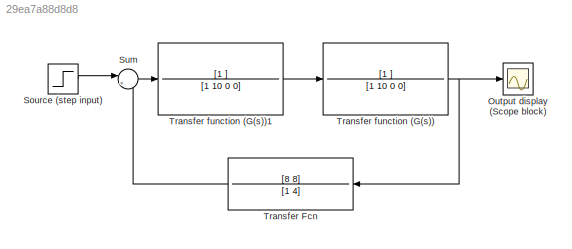
MODEL slx_29ea7a88d8d8
KIND model
CONFIG AbsTol = auto
CONFIG EnableMultiTasking = off
CONFIG FixedStep = auto
CONFIG MaxStep = auto
CONFIG MinStep = auto
CONFIG RelTol = 1e-3
CONFIG SampleTimeConstraint = Unconstrained
CONFIG SolverName = VariableStepAuto
CONFIG StartTime = 0.0
CONFIG StopTime = 20
BLOCK [Scope] Output display (Scope block)
  Floating = off
  NumInputPorts = 1
  Ports = [1]
  ScopeSpecificationString = Simulink.scopes.TimeScopeBlockCfg('CurrentConfiguration', extmgr.ConfigurationSet(extmgr.Configuration('Core','General UI',true),extmgr.Configuration('Core','Source UI',true),extmgr.Configuration('Sources','WiredSimulink',true),extmgr.Configuration('Visuals','Time Domain',true,'SerializedDisplays',{struct('MinYLimReal','-0.10177','MaxYLimReal','0.91597','YLabelReal','','MinYLimMag','0.00000','MaxY...<+1690ch>
BLOCK [Step] Source (step input)
  SampleTime = 0
BLOCK [Sum] Sum
  Inputs = |+-
  Ports = [2, 1]
BLOCK [TransferFcn] Transfer Fcn
  Denominator = [1 4]
  Numerator = [8 8]
BLOCK [TransferFcn] Transfer function (G(s))
  ContinuousStateAttributes = 'H'
  Denominator = [1 10 0 0]
  Numerator = [1 ]
BLOCK [TransferFcn] Transfer function (G(s))1
  ContinuousStateAttributes = 'H'
  Denominator = [1 10 0 0]
  Numerator = [1 ]
LINE Source (step input):1 -> Sum:1
LINE Sum:1 -> Transfer function (G(s))1:1
LINE Transfer Fcn:1 -> Sum:2
LINE Transfer function (G(s))1:1 -> Transfer function (G(s)):1
NET Transfer function (G(s)):1 -> Output display (Scope block):1, Transfer Fcn:1
note: NET lines group one-source signal fan-out (src -> all destinations, sorted); 1:1 wires keep LINE
